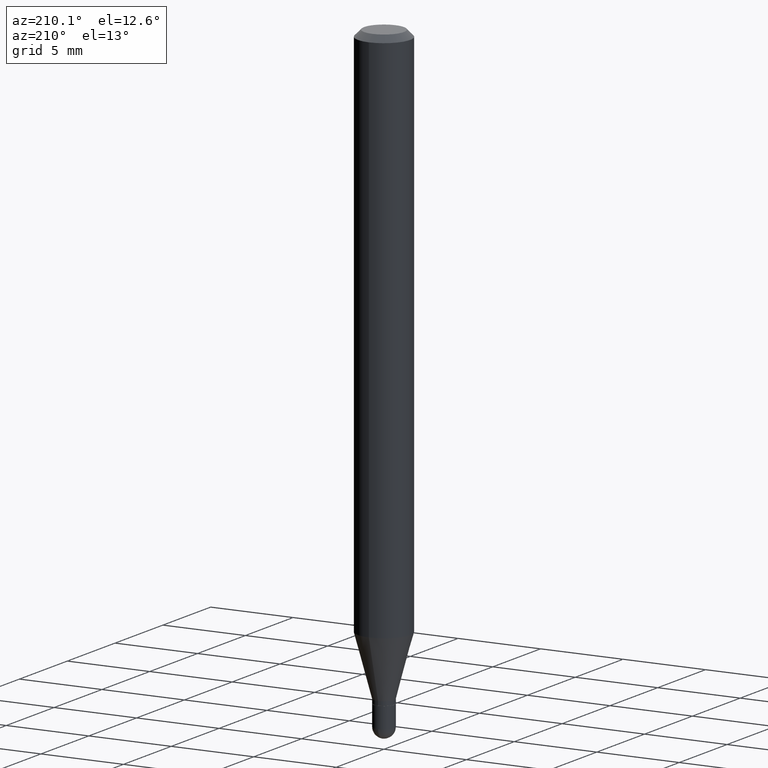
[diagram: clean part render]
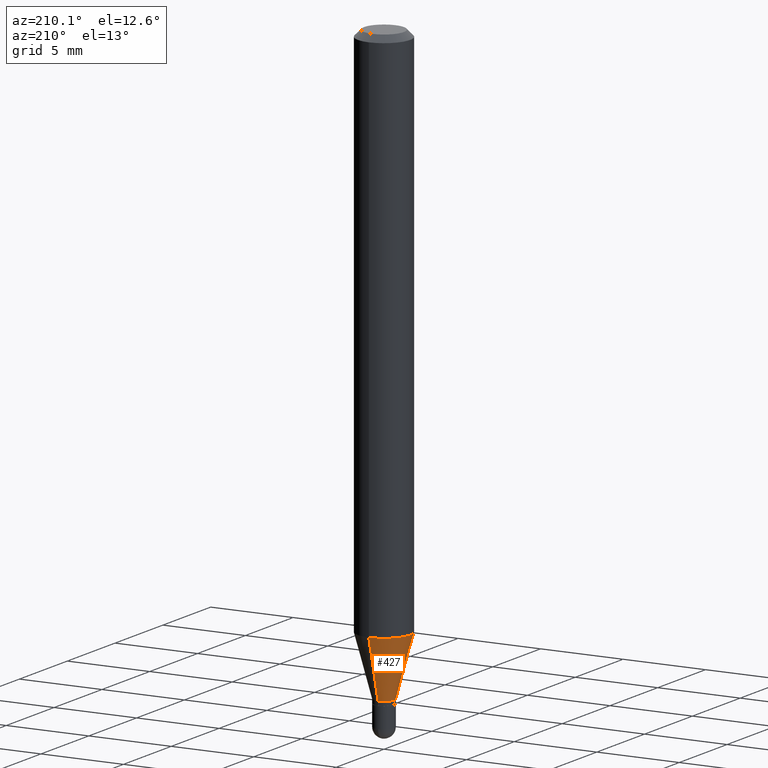
[diagram: same view with one face highlighted and labeled with its STEP entity id]
A machine part, auxiliary view. The second image highlights one B-rep face of the part: STEP entity #427.
In plain terms, the highlighted conical surface has half-angle 15 deg.
Its self-contained STEP definition (entity closure, byte-faithful):
#6 = EDGE_CURVE ( 'NONE', #367, #392, #416, .T. ) ;
#44 = CARTESIAN_POINT ( 'NONE',  ( 3.090860900556762480E-16, 0.02449999999999498065, -1.416000000000000369 ) ) ;
#79 = CARTESIAN_POINT ( 'NONE',  ( -1.710825856032783344E-16, -0.02450000000000486858, -1.416000000000000369 ) ) ;
#81 = ORIENTED_EDGE ( 'NONE', *, *, #299, .T. ) ;
#105 = AXIS2_PLACEMENT_3D ( 'NONE', #331, #487, #294 ) ;
#131 = DIRECTION ( 'NONE',  ( 1.839019923739602682E-15, 0.2588190451025252914, 0.9659258262890670910 ) ) ;
#154 = EDGE_LOOP ( 'NONE', ( #461, #452, #81, #296 ) ) ;
#160 = DIRECTION ( 'NONE',  ( -2.445462433583878327E-29, 3.491490464770853436E-15, 1.000000000000000000 ) ) ;
#161 = DIRECTION ( 'NONE',  ( -1.807323732225332900E-15, -0.2588190451025185190, 0.9659258262890689783 ) ) ;
#168 = DIRECTION ( 'NONE',  ( -6.982962677686265133E-15, -1.000000000000000000, 0.000000000000000000 ) ) ;
#180 = AXIS2_PLACEMENT_3D ( 'NONE', #278, #234, #168 ) ;
#203 = AXIS2_PLACEMENT_3D ( 'NONE', #503, #160, #505 ) ;
#221 = VECTOR ( 'NONE', #161, 39.37007874015748854 ) ;
#232 = VERTEX_POINT ( 'NONE', #336 ) ;
#234 = DIRECTION ( 'NONE',  ( -2.445462433583878327E-29, 3.491490464770853436E-15, 1.000000000000000000 ) ) ;
#255 = FACE_OUTER_BOUND ( 'NONE', #154, .T. ) ;
#275 = LINE ( 'NONE', #469, #349 ) ;
#278 = CARTESIAN_POINT ( 'NONE',  ( 3.462774805954772922E-29, -4.943950498115529734E-15, -1.416000000000000369 ) ) ;
#294 = DIRECTION ( 'NONE',  ( -6.982962677686265133E-15, -1.000000000000000000, 0.000000000000000000 ) ) ;
#296 = ORIENTED_EDGE ( 'NONE', *, *, #6, .F. ) ;
#299 = EDGE_CURVE ( 'NONE', #232, #392, #308, .T. ) ;
#308 = LINE ( 'NONE', #79, #221 ) ;
#322 = CARTESIAN_POINT ( 'NONE',  ( -4.364351673553605587E-16, -0.06250000000000446865, -1.274182069312383314 ) ) ;
#327 = CIRCLE ( 'NONE', #180, 0.02449999999999992462 ) ;
#330 = CARTESIAN_POINT ( 'NONE',  ( 4.440892098500935790E-16, 0.06249999999999553135, -1.274182069312383758 ) ) ;
#331 = CARTESIAN_POINT ( 'NONE',  ( 3.462774805954772922E-29, -4.943950498115529734E-15, -1.416000000000000369 ) ) ;
#332 = EDGE_CURVE ( 'NONE', #382, #367, #275, .T. ) ;
#335 = EDGE_CURVE ( 'NONE', #382, #232, #327, .T. ) ;
#336 = CARTESIAN_POINT ( 'NONE',  ( -1.710825856032783344E-16, -0.02450000000000486858, -1.416000000000000369 ) ) ;
#349 = VECTOR ( 'NONE', #131, 39.37007874015748143 ) ;
#367 = VERTEX_POINT ( 'NONE', #330 ) ;
#382 = VERTEX_POINT ( 'NONE', #44 ) ;
#392 = VERTEX_POINT ( 'NONE', #322 ) ;
#416 = CIRCLE ( 'NONE', #203, 0.06250000000000000000 ) ;
#427 = ADVANCED_FACE ( 'NONE', ( #255 ), #429, .T. ) ;
#429 = CONICAL_SURFACE ( 'NONE', #105, 0.02449999999999992462, 0.2617993877991506291 ) ;
#452 = ORIENTED_EDGE ( 'NONE', *, *, #335, .T. ) ;
#461 = ORIENTED_EDGE ( 'NONE', *, *, #332, .F. ) ;
#469 = CARTESIAN_POINT ( 'NONE',  ( 1.740829702612586212E-16, 0.02449999999999498065, -1.416000000000000369 ) ) ;
#487 = DIRECTION ( 'NONE',  ( -2.445462433583878327E-29, 3.491490464770853436E-15, 1.000000000000000000 ) ) ;
#503 = CARTESIAN_POINT ( 'NONE',  ( 3.115964384049603462E-29, -4.448794545386181558E-15, -1.274182069312383536 ) ) ;
#505 = DIRECTION ( 'NONE',  ( -6.982962677686265922E-15, -1.000000000000000000, 4.370956789862821150E-15 ) ) ;